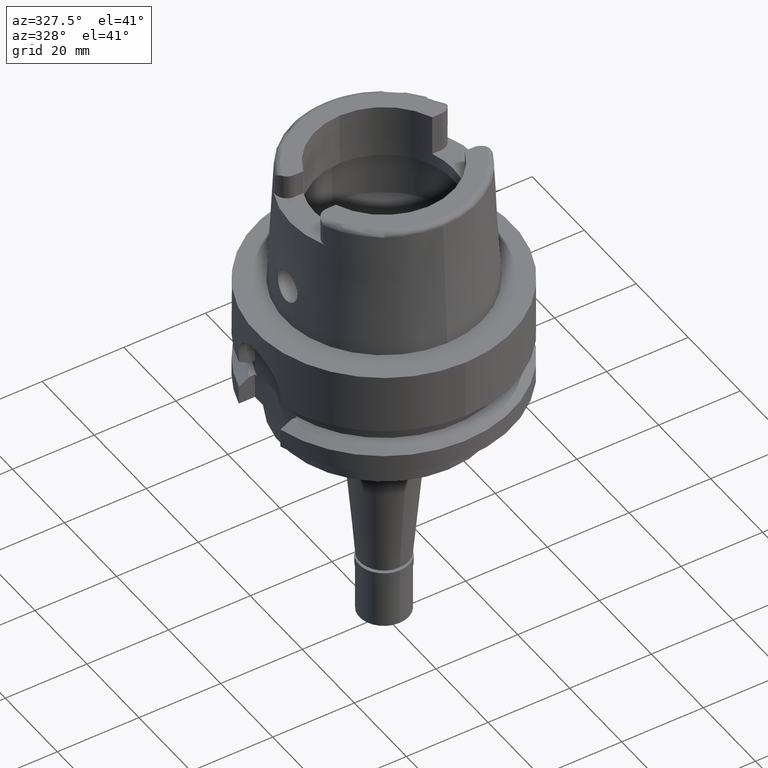
[diagram: clean part render]
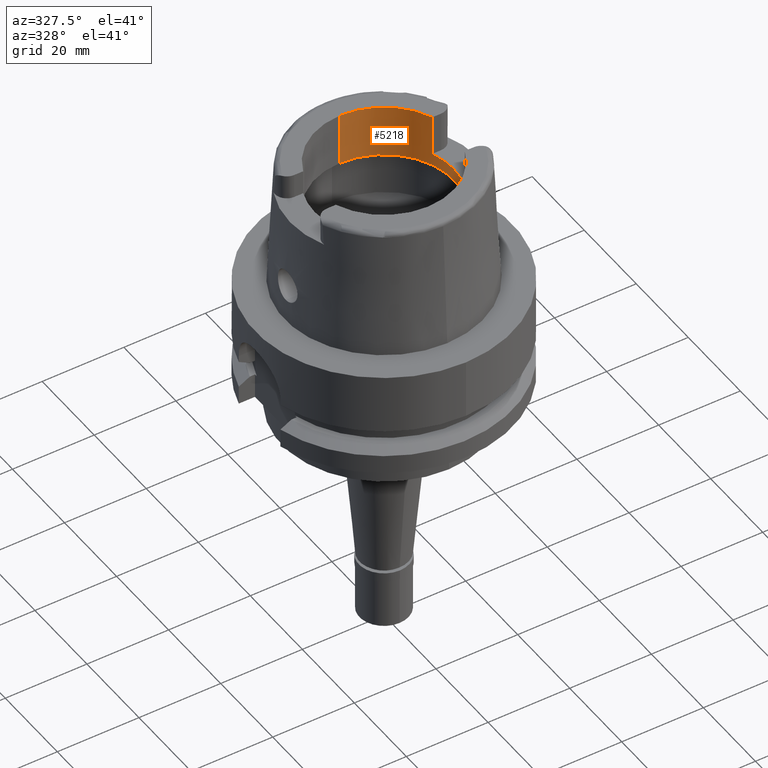
[diagram: same view with one face highlighted and labeled with its STEP entity id]
A machine part, auxiliary view. The second image highlights one B-rep face of the part: STEP entity #5218.
In plain terms, the highlighted cylindrical surface (partial cylindrical patch) has radius 17 mm, axis along (0, 0, -1).
Its self-contained STEP definition (entity closure, byte-faithful):
#47 = CIRCLE ( 'NONE', #4784, 17.00000000000000000 ) ;
#82 = ORIENTED_EDGE ( 'NONE', *, *, #2447, .T. ) ;
#136 = DIRECTION ( 'NONE',  ( 0.0000000000000000000, 0.0000000000000000000, 1.000000000000000000 ) ) ;
#147 = EDGE_LOOP ( 'NONE', ( #1900, #5263, #3246, #3635, #82, #3081, #4940, #5244 ) ) ;
#312 = CARTESIAN_POINT ( 'NONE',  ( 0.0000000000000000000, 17.00000000000000000, 18.99602540378000270 ) ) ;
#406 = DIRECTION ( 'NONE',  ( 0.0000000000000000000, -1.000000000000000000, 0.0000000000000000000 ) ) ;
#505 = EDGE_CURVE ( 'NONE', #4471, #5625, #2974, .T. ) ;
#778 = EDGE_CURVE ( 'NONE', #4471, #5166, #3972, .T. ) ;
#826 = LINE ( 'NONE', #3017, #4144 ) ;
#829 = CARTESIAN_POINT ( 'NONE',  ( 15.80149043602999903, -6.270000000000000462, 22.00000000000000000 ) ) ;
#837 = CYLINDRICAL_SURFACE ( 'NONE', #3389, 17.00000000000000000 ) ;
#891 = VERTEX_POINT ( 'NONE', #1281 ) ;
#910 = EDGE_CURVE ( 'NONE', #3882, #5166, #3903, .T. ) ;
#917 = DIRECTION ( 'NONE',  ( 0.0000000000000000000, 0.0000000000000000000, 1.000000000000000000 ) ) ;
#959 = CARTESIAN_POINT ( 'NONE',  ( 0.0000000000000000000, 1.688787936023999784E-14, 32.00000000000000000 ) ) ;
#1083 = DIRECTION ( 'NONE',  ( 0.0000000000000000000, 1.000000000000000000, 0.0000000000000000000 ) ) ;
#1132 = LINE ( 'NONE', #312, #5242 ) ;
#1281 = CARTESIAN_POINT ( 'NONE',  ( 15.80149043602999903, 6.270000000000000462, 32.00000000000000000 ) ) ;
#1289 = DIRECTION ( 'NONE',  ( 0.0000000000000000000, 0.0000000000000000000, -1.000000000000000000 ) ) ;
#1385 = LINE ( 'NONE', #3582, #3585 ) ;
#1738 = CARTESIAN_POINT ( 'NONE',  ( 0.0000000000000000000, 1.688787936023999784E-14, 32.00000000000000000 ) ) ;
#1900 = ORIENTED_EDGE ( 'NONE', *, *, #2166, .F. ) ;
#2018 = EDGE_CURVE ( 'NONE', #5172, #3845, #5151, .T. ) ;
#2166 = EDGE_CURVE ( 'NONE', #891, #5625, #826, .T. ) ;
#2280 = VERTEX_POINT ( 'NONE', #3410 ) ;
#2297 = CARTESIAN_POINT ( 'NONE',  ( 15.80149043602999903, 6.270000000000000462, 22.00000000000000000 ) ) ;
#2314 = DIRECTION ( 'NONE',  ( 0.0000000000000000000, -1.000000000000000000, 0.0000000000000000000 ) ) ;
#2447 = EDGE_CURVE ( 'NONE', #3845, #3882, #1385, .T. ) ;
#2567 = DIRECTION ( 'NONE',  ( 0.0000000000000000000, 0.0000000000000000000, -1.000000000000000000 ) ) ;
#2577 = CARTESIAN_POINT ( 'NONE',  ( 0.0000000000000000000, 1.688787936023999784E-14, 37.90000000000000568 ) ) ;
#2728 = DIRECTION ( 'NONE',  ( 0.9294994374136111848, 0.3688235294118045182, 0.0000000000000000000 ) ) ;
#2876 = DIRECTION ( 'NONE',  ( 0.0000000000000000000, -7.403777974427000140E-14, 1.000000000000000000 ) ) ;
#2919 = CARTESIAN_POINT ( 'NONE',  ( 0.0000000000000000000, 1.688787936023999784E-14, 22.00000000000000000 ) ) ;
#2932 = EDGE_CURVE ( 'NONE', #891, #2280, #47, .T. ) ;
#2974 = CIRCLE ( 'NONE', #3341, 17.00000000000000000 ) ;
#2980 = AXIS2_PLACEMENT_3D ( 'NONE', #1738, #917, #406 ) ;
#3017 = CARTESIAN_POINT ( 'NONE',  ( 15.80149043602999903, 6.270000000000000462, 32.00000000000000000 ) ) ;
#3081 = ORIENTED_EDGE ( 'NONE', *, *, #910, .T. ) ;
#3246 = ORIENTED_EDGE ( 'NONE', *, *, #3528, .F. ) ;
#3341 = AXIS2_PLACEMENT_3D ( 'NONE', #2919, #3781, #4666 ) ;
#3389 = AXIS2_PLACEMENT_3D ( 'NONE', #2577, #1289, #2314 ) ;
#3410 = CARTESIAN_POINT ( 'NONE',  ( 0.0000000000000000000, 17.00000000000000000, 32.00000000000000000 ) ) ;
#3458 = FACE_OUTER_BOUND ( 'NONE', #147, .T. ) ;
#3476 = DIRECTION ( 'NONE',  ( 0.0000000000000000000, 0.0000000000000000000, 1.000000000000000000 ) ) ;
#3528 = EDGE_CURVE ( 'NONE', #5172, #2280, #1132, .T. ) ;
#3582 = CARTESIAN_POINT ( 'NONE',  ( 0.0000000000000000000, -17.00000000000000000, 18.99602540378000270 ) ) ;
#3585 = VECTOR ( 'NONE', #5421, 1000.000000000000000 ) ;
#3635 = ORIENTED_EDGE ( 'NONE', *, *, #2018, .T. ) ;
#3665 = CARTESIAN_POINT ( 'NONE',  ( 0.0000000000000000000, 17.00000000000000000, 18.99602540378000270 ) ) ;
#3781 = DIRECTION ( 'NONE',  ( 0.0000000000000000000, 0.0000000000000000000, 1.000000000000000000 ) ) ;
#3845 = VERTEX_POINT ( 'NONE', #4470 ) ;
#3873 = AXIS2_PLACEMENT_3D ( 'NONE', #5000, #4971, #1083 ) ;
#3882 = VERTEX_POINT ( 'NONE', #5374 ) ;
#3903 = CIRCLE ( 'NONE', #2980, 17.00000000000000000 ) ;
#3972 = LINE ( 'NONE', #829, #4353 ) ;
#4144 = VECTOR ( 'NONE', #2567, 1000.000000000000000 ) ;
#4353 = VECTOR ( 'NONE', #3476, 1000.000000000000000 ) ;
#4470 = CARTESIAN_POINT ( 'NONE',  ( 0.0000000000000000000, -17.00000000000000000, 18.99602540378000270 ) ) ;
#4471 = VERTEX_POINT ( 'NONE', #5169 ) ;
#4666 = DIRECTION ( 'NONE',  ( 0.9294994374136111848, -0.3688235294118045182, 0.0000000000000000000 ) ) ;
#4784 = AXIS2_PLACEMENT_3D ( 'NONE', #959, #136, #2728 ) ;
#4940 = ORIENTED_EDGE ( 'NONE', *, *, #778, .F. ) ;
#4971 = DIRECTION ( 'NONE',  ( 0.0000000000000000000, 0.0000000000000000000, -1.000000000000000000 ) ) ;
#5000 = CARTESIAN_POINT ( 'NONE',  ( 0.0000000000000000000, 1.446675263833000174E-14, 18.99602540378000270 ) ) ;
#5151 = CIRCLE ( 'NONE', #3873, 17.00000000000000000 ) ;
#5166 = VERTEX_POINT ( 'NONE', #5476 ) ;
#5169 = CARTESIAN_POINT ( 'NONE',  ( 15.80149043602999903, -6.270000000000000462, 22.00000000000000000 ) ) ;
#5172 = VERTEX_POINT ( 'NONE', #3665 ) ;
#5218 = ADVANCED_FACE ( 'NONE', ( #3458 ), #837, .F. ) ;
#5242 = VECTOR ( 'NONE', #2876, 1000.000000000000000 ) ;
#5244 = ORIENTED_EDGE ( 'NONE', *, *, #505, .T. ) ;
#5263 = ORIENTED_EDGE ( 'NONE', *, *, #2932, .T. ) ;
#5374 = CARTESIAN_POINT ( 'NONE',  ( 0.0000000000000000000, -17.00000000000000000, 32.00000000000000000 ) ) ;
#5421 = DIRECTION ( 'NONE',  ( 0.0000000000000000000, 7.403777974427000140E-14, 1.000000000000000000 ) ) ;
#5476 = CARTESIAN_POINT ( 'NONE',  ( 15.80149043602999903, -6.270000000000000462, 32.00000000000000000 ) ) ;
#5625 = VERTEX_POINT ( 'NONE', #2297 ) ;